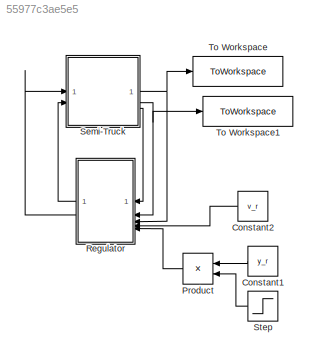
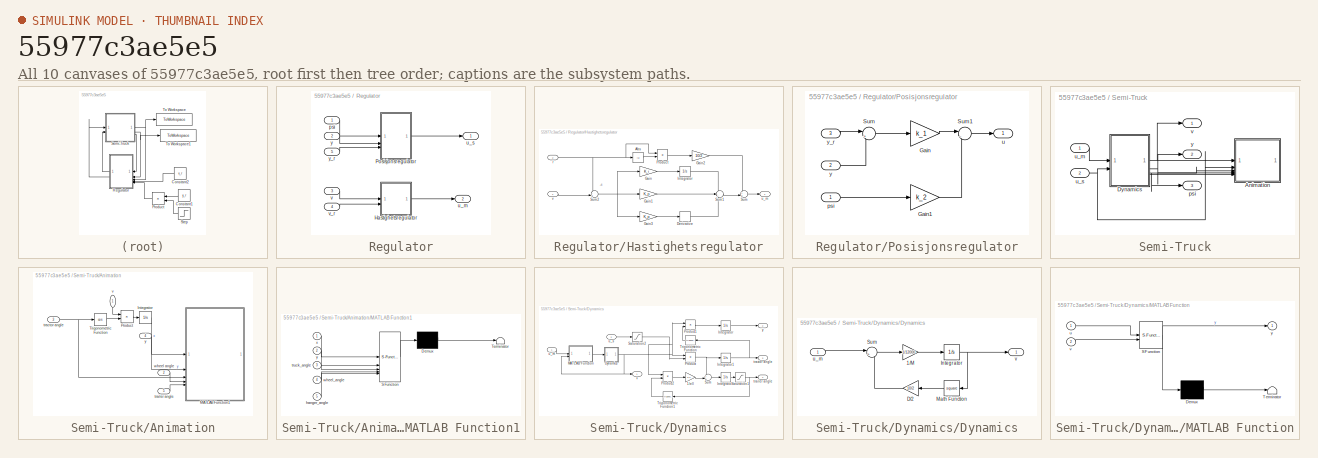
[diagram: thumbnail index - all 10 canvases of the model, root first then tree order]
MODEL slx_55977c3ae5e5
KIND model
CONFIG AbsTol = auto
CONFIG EnableMultiTasking = off
CONFIG FixedStep = auto
CONFIG MaxStep = 0.01
CONFIG MinStep = auto
CONFIG RelTol = 1e-3
CONFIG SampleTimeConstraint = Unconstrained
CONFIG SolverName = VariableStepAuto
CONFIG StartTime = 0.0
CONFIG StopTime = stopTime
WORKSPACE source: mxarray member
WORKSPACE v_r = -1
BLOCK [Constant] Constant1
  NameLocation = top
  Value = y_r
BLOCK [Constant] Constant2
  NameLocation = top
  Value = v_r
BLOCK [Product] Product
  NameLocation = top
BLOCK [SubSystem] Regulator
  NameLocation = top
BLOCK [SubSystem] Regulator/Hastighetsregulator
BLOCK [Abs] Regulator/Hastighetsregulator/Abs
  SaturateOnIntegerOverflow = off
BLOCK [Derivative] Regulator/Hastighetsregulator/Derivative
BLOCK [Gain] Regulator/Hastighetsregulator/Gain
  Gain = K_i
BLOCK [Gain] Regulator/Hastighetsregulator/Gain1
  Gain = K_p
BLOCK [Gain] Regulator/Hastighetsregulator/Gain2
  Gain = 10/2
BLOCK [Gain] Regulator/Hastighetsregulator/Gain3
  Gain = K_p
BLOCK [Integrator] Regulator/Hastighetsregulator/Integrator
BLOCK [Product] Regulator/Hastighetsregulator/Product
BLOCK [Sum] Regulator/Hastighetsregulator/Sum
  Inputs = ++|
BLOCK [Sum] Regulator/Hastighetsregulator/Sum1
  Inputs = --+
BLOCK [Sum] Regulator/Hastighetsregulator/Sum2
  Inputs = -+|
BLOCK [Inport] Regulator/Hastighetsregulator/r
  Port = 2
BLOCK [Outport] Regulator/Hastighetsregulator/u_m
BLOCK [Inport] Regulator/Hastighetsregulator/v
BLOCK [SubSystem] Regulator/Posisjonsregulator
BLOCK [Gain] Regulator/Posisjonsregulator/Gain
  Gain = k_1
BLOCK [Gain] Regulator/Posisjonsregulator/Gain1
  Gain = k_2
BLOCK [Sum] Regulator/Posisjonsregulator/Sum
  Inputs = |+-
BLOCK [Sum] Regulator/Posisjonsregulator/Sum1
  Inputs = |--
BLOCK [Inport] Regulator/Posisjonsregulator/psi
BLOCK [Outport] Regulator/Posisjonsregulator/u
BLOCK [Inport] Regulator/Posisjonsregulator/y
  Port = 2
BLOCK [Inport] Regulator/Posisjonsregulator/y_r
  Port = 3
BLOCK [Inport] Regulator/psi
BLOCK [Outport] Regulator/u_m
  Port = 2
BLOCK [Outport] Regulator/u_s
BLOCK [Inport] Regulator/v
  Port = 3
BLOCK [Inport] Regulator/v_r
  Port = 4
BLOCK [Inport] Regulator/y
  Port = 2
BLOCK [Inport] Regulator/y_r
  Port = 5
BLOCK [SubSystem] Semi-Truck
BLOCK [SubSystem] Semi-Truck/Animation
BLOCK [Integrator] Semi-Truck/Animation/Integrator
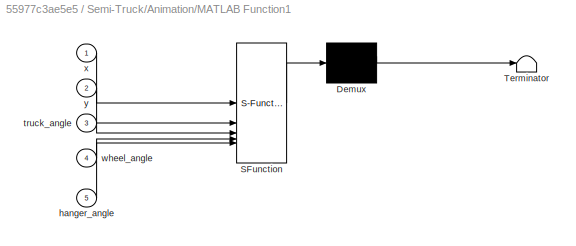
BLOCK [SubSystem] Semi-Truck/Animation/MATLAB Function1
  ErrorFcn = Stateflow.Translate.translate
  PermitHierarchicalResolution = ExplicitOnly
  SFBlockType = MATLAB Function
  SystemSampleTime = 1/30
  TreatAsAtomicUnit = on
BLOCK [Demux] Semi-Truck/Animation/MATLAB Function1/ Demux 
  Outputs = 1
BLOCK [S-Function] Semi-Truck/Animation/MATLAB Function1/ SFunction 
  EnableBusSupport = on
  FunctionName = sf_sfun
  PortCounts = [5 1]
  SFcnIsStateOwnerBlock = off
  SFunctionDeploymentMode = off
  Tag = Stateflow S-Function 3
BLOCK [Terminator] Semi-Truck/Animation/MATLAB Function1/ Terminator 
BLOCK [Inport] Semi-Truck/Animation/MATLAB Function1/hanger_angle
  Port = 5
BLOCK [Inport] Semi-Truck/Animation/MATLAB Function1/truck_angle
  Port = 3
BLOCK [Inport] Semi-Truck/Animation/MATLAB Function1/wheel_angle
  Port = 4
BLOCK [Inport] Semi-Truck/Animation/MATLAB Function1/x
BLOCK [Inport] Semi-Truck/Animation/MATLAB Function1/y
  Port = 2
BLOCK [Product] Semi-Truck/Animation/Product
BLOCK [Trigonometry] Semi-Truck/Animation/Trigonometric Function
  Operator = cos
BLOCK [Inport] Semi-Truck/Animation/tractor angle
  Port = 3
BLOCK [Inport] Semi-Truck/Animation/trailer angle
  Port = 5
BLOCK [Inport] Semi-Truck/Animation/v
  NameLocation = left
BLOCK [Inport] Semi-Truck/Animation/wheel angle
  Port = 2
BLOCK [Inport] Semi-Truck/Animation/y
  Port = 4
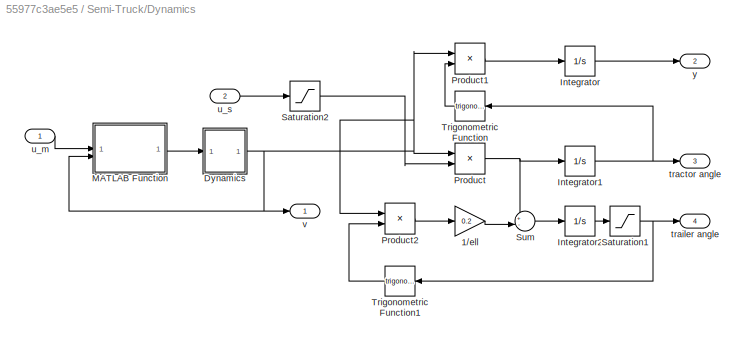
BLOCK [SubSystem] Semi-Truck/Dynamics
  ClipboardFcn = parameters_truck.m
BLOCK [Gain] Semi-Truck/Dynamics/1//ell
  Gain = 0.2
BLOCK [SubSystem] Semi-Truck/Dynamics/Dynamics
  ClipboardFcn = parameters_truck.m
BLOCK [Gain] Semi-Truck/Dynamics/Dynamics/1//M
  Gain = 1/12000
BLOCK [Gain] Semi-Truck/Dynamics/Dynamics/D//2
  Gain = 10/2
  NameLocation = top
BLOCK [Integrator] Semi-Truck/Dynamics/Dynamics/Integrator
BLOCK [Math] Semi-Truck/Dynamics/Dynamics/Math Function
  NameLocation = top
  Operator = square
BLOCK [Sum] Semi-Truck/Dynamics/Dynamics/Sum
  Inputs = |+-
BLOCK [Inport] Semi-Truck/Dynamics/Dynamics/u_m
BLOCK [Outport] Semi-Truck/Dynamics/Dynamics/v
BLOCK [Integrator] Semi-Truck/Dynamics/Integrator
  InitialCondition = -2
BLOCK [Integrator] Semi-Truck/Dynamics/Integrator1
BLOCK [Integrator] Semi-Truck/Dynamics/Integrator2
BLOCK [SubSystem] Semi-Truck/Dynamics/MATLAB Function
  ErrorFcn = Stateflow.Translate.translate
  PermitHierarchicalResolution = ExplicitOnly
  SFBlockType = MATLAB Function
  TreatAsAtomicUnit = on
BLOCK [Demux] Semi-Truck/Dynamics/MATLAB Function/ Demux 
  Outputs = 1
BLOCK [S-Function] Semi-Truck/Dynamics/MATLAB Function/ SFunction 
  EnableBusSupport = on
  FunctionName = sf_sfun
  PortCounts = [2 2]
  SFcnIsStateOwnerBlock = off
  SFunctionDeploymentMode = off
  Tag = Stateflow S-Function 1
BLOCK [Terminator] Semi-Truck/Dynamics/MATLAB Function/ Terminator 
BLOCK [Inport] Semi-Truck/Dynamics/MATLAB Function/u
BLOCK [Inport] Semi-Truck/Dynamics/MATLAB Function/v
  Port = 2
BLOCK [Outport] Semi-Truck/Dynamics/MATLAB Function/y
BLOCK [Product] Semi-Truck/Dynamics/Product
BLOCK [Product] Semi-Truck/Dynamics/Product1
BLOCK [Product] Semi-Truck/Dynamics/Product2
BLOCK [Saturate] Semi-Truck/Dynamics/Saturation1
  LowerLimit = -pi/2
  UpperLimit = pi/2
BLOCK [Saturate] Semi-Truck/Dynamics/Saturation2
  LowerLimit = -pi/2
  UpperLimit = pi/2
BLOCK [Sum] Semi-Truck/Dynamics/Sum
  Inputs = +-|
BLOCK [Trigonometry] Semi-Truck/Dynamics/Trigonometric Function
  NameLocation = top
BLOCK [Trigonometry] Semi-Truck/Dynamics/Trigonometric Function1
  NameLocation = top
BLOCK [Outport] Semi-Truck/Dynamics/tractor angle
  Port = 3
BLOCK [Outport] Semi-Truck/Dynamics/trailer angle
  Port = 4
BLOCK [Inport] Semi-Truck/Dynamics/u_m
BLOCK [Inport] Semi-Truck/Dynamics/u_s
  Port = 2
BLOCK [Outport] Semi-Truck/Dynamics/v
BLOCK [Outport] Semi-Truck/Dynamics/y
  Port = 2
BLOCK [Outport] Semi-Truck/psi
  Port = 3
BLOCK [Inport] Semi-Truck/u_m
BLOCK [Inport] Semi-Truck/u_s
  Port = 2
BLOCK [Outport] Semi-Truck/v
BLOCK [Outport] Semi-Truck/y
  Port = 2
BLOCK [Step] Step
  After = -1
  Before = 1
  NameLocation = top
  SampleTime = 0
  Time = 10
BLOCK [ToWorkspace] To Workspace
  FixptAsFi = on
  MaxDataPoints = inf
  SampleTime = 0.1
  Save2DSignal = 2-D array (concatenate along first dimension)
  VariableName = v
BLOCK [ToWorkspace] To Workspace1
  FixptAsFi = on
  MaxDataPoints = inf
  SampleTime = 0.1
  Save2DSignal = 2-D array (concatenate along first dimension)
  VariableName = y
ANNOTATION Regulator/Hastighetsregulator: -e
LINE Constant1:1 -> Product:1
LINE Constant2:1 -> Regulator:4
LINE Product:1 -> Regulator:5
LINE Regulator/Hastighetsregulator/Abs:1 -> Regulator/Hastighetsregulator/Product:2
LINE Regulator/Hastighetsregulator/Derivative:1 -> Regulator/Hastighetsregulator/Sum1:3
LINE Regulator/Hastighetsregulator/Gain1:1 -> Regulator/Hastighetsregulator/Sum1:2
LINE Regulator/Hastighetsregulator/Gain2:1 -> Regulator/Hastighetsregulator/Sum:1
LINE Regulator/Hastighetsregulator/Gain3:1 -> Regulator/Hastighetsregulator/Derivative:1
LINE Regulator/Hastighetsregulator/Gain:1 -> Regulator/Hastighetsregulator/Integrator:1
LINE Regulator/Hastighetsregulator/Integrator:1 -> Regulator/Hastighetsregulator/Sum1:1
LINE Regulator/Hastighetsregulator/Product:1 -> Regulator/Hastighetsregulator/Gain2:1
LINE Regulator/Hastighetsregulator/Sum1:1 -> Regulator/Hastighetsregulator/Sum:2
NET Regulator/Hastighetsregulator/Sum2:1 -> Regulator/Hastighetsregulator/Gain1:1, Regulator/Hastighetsregulator/Gain3:1, Regulator/Hastighetsregulator/Gain:1
LINE Regulator/Hastighetsregulator/Sum:1 -> Regulator/Hastighetsregulator/u_m:1
NET Regulator/Hastighetsregulator/r:1 -> Regulator/Hastighetsregulator/Abs:1, Regulator/Hastighetsregulator/Product:1, Regulator/Hastighetsregulator/Sum2:1
LINE Regulator/Hastighetsregulator/v:1 -> Regulator/Hastighetsregulator/Sum2:2
LINE Regulator/Hastighetsregulator:1 -> Regulator/u_m:1
LINE Regulator/Posisjonsregulator/Gain1:1 -> Regulator/Posisjonsregulator/Sum1:2
LINE Regulator/Posisjonsregulator/Gain:1 -> Regulator/Posisjonsregulator/Sum1:1
LINE Regulator/Posisjonsregulator/Sum1:1 -> Regulator/Posisjonsregulator/u:1
LINE Regulator/Posisjonsregulator/Sum:1 -> Regulator/Posisjonsregulator/Gain:1
LINE Regulator/Posisjonsregulator/psi:1 -> Regulator/Posisjonsregulator/Gain1:1
LINE Regulator/Posisjonsregulator/y:1 -> Regulator/Posisjonsregulator/Sum:2
LINE Regulator/Posisjonsregulator/y_r:1 -> Regulator/Posisjonsregulator/Sum:1
LINE Regulator/Posisjonsregulator:1 -> Regulator/u_s:1
LINE Regulator/psi:1 -> Regulator/Posisjonsregulator:1
LINE Regulator/v:1 -> Regulator/Hastighetsregulator:1
LINE Regulator/v_r:1 -> Regulator/Hastighetsregulator:2
LINE Regulator/y:1 -> Regulator/Posisjonsregulator:2
LINE Regulator/y_r:1 -> Regulator/Posisjonsregulator:3
LINE Regulator:1 -> Semi-Truck:2
LINE Regulator:2 -> Semi-Truck:1
LINE Semi-Truck/Animation/Integrator:1 -> Semi-Truck/Animation/MATLAB Function1:1
LINE Semi-Truck/Animation/Product:1 -> Semi-Truck/Animation/Integrator:1
LINE Semi-Truck/Animation/Trigonometric Function:1 -> Semi-Truck/Animation/Product:2
NET Semi-Truck/Animation/tractor angle:1 -> Semi-Truck/Animation/MATLAB Function1:3, Semi-Truck/Animation/Trigonometric Function:1
LINE Semi-Truck/Animation/trailer angle:1 -> Semi-Truck/Animation/MATLAB Function1:5
LINE Semi-Truck/Animation/v:1 -> Semi-Truck/Animation/Product:1
LINE Semi-Truck/Animation/wheel angle:1 -> Semi-Truck/Animation/MATLAB Function1:4
LINE Semi-Truck/Animation/y:1 -> Semi-Truck/Animation/MATLAB Function1:2
LINE Semi-Truck/Dynamics/1//ell:1 -> Semi-Truck/Dynamics/Sum:2
LINE Semi-Truck/Dynamics/Dynamics/1//M:1 -> Semi-Truck/Dynamics/Dynamics/Integrator:1
LINE Semi-Truck/Dynamics/Dynamics/D//2:1 -> Semi-Truck/Dynamics/Dynamics/Sum:2
NET Semi-Truck/Dynamics/Dynamics/Integrator:1 -> Semi-Truck/Dynamics/Dynamics/Math Function:1, Semi-Truck/Dynamics/Dynamics/v:1
LINE Semi-Truck/Dynamics/Dynamics/Math Function:1 -> Semi-Truck/Dynamics/Dynamics/D//2:1
LINE Semi-Truck/Dynamics/Dynamics/Sum:1 -> Semi-Truck/Dynamics/Dynamics/1//M:1
LINE Semi-Truck/Dynamics/Dynamics/u_m:1 -> Semi-Truck/Dynamics/Dynamics/Sum:1
NET Semi-Truck/Dynamics/Dynamics:1 -> Semi-Truck/Dynamics/MATLAB Function:2, Semi-Truck/Dynamics/Product1:1, Semi-Truck/Dynamics/Product2:1, Semi-Truck/Dynamics/Product:1, Semi-Truck/Dynamics/v:1
NET Semi-Truck/Dynamics/Integrator1:1 -> Semi-Truck/Dynamics/Trigonometric Function:1, Semi-Truck/Dynamics/tractor angle:1
LINE Semi-Truck/Dynamics/Integrator2:1 -> Semi-Truck/Dynamics/Saturation1:1
LINE Semi-Truck/Dynamics/Integrator:1 -> Semi-Truck/Dynamics/y:1
LINE Semi-Truck/Dynamics/MATLAB Function:1 -> Semi-Truck/Dynamics/Dynamics:1
LINE Semi-Truck/Dynamics/Product1:1 -> Semi-Truck/Dynamics/Integrator:1
LINE Semi-Truck/Dynamics/Product2:1 -> Semi-Truck/Dynamics/1//ell:1
NET Semi-Truck/Dynamics/Product:1 -> Semi-Truck/Dynamics/Integrator1:1, Semi-Truck/Dynamics/Sum:1
NET Semi-Truck/Dynamics/Saturation1:1 -> Semi-Truck/Dynamics/Trigonometric Function1:1, Semi-Truck/Dynamics/trailer angle:1
LINE Semi-Truck/Dynamics/Saturation2:1 -> Semi-Truck/Dynamics/Product:2
LINE Semi-Truck/Dynamics/Sum:1 -> Semi-Truck/Dynamics/Integrator2:1
LINE Semi-Truck/Dynamics/Trigonometric Function1:1 -> Semi-Truck/Dynamics/Product2:2
LINE Semi-Truck/Dynamics/Trigonometric Function:1 -> Semi-Truck/Dynamics/Product1:2
LINE Semi-Truck/Dynamics/u_m:1 -> Semi-Truck/Dynamics/MATLAB Function:1
LINE Semi-Truck/Dynamics/u_s:1 -> Semi-Truck/Dynamics/Saturation2:1
NET Semi-Truck/Dynamics:1 -> Semi-Truck/Animation:1, Semi-Truck/v:1
NET Semi-Truck/Dynamics:2 -> Semi-Truck/Animation:4, Semi-Truck/y:1
NET Semi-Truck/Dynamics:3 -> Semi-Truck/Animation:3, Semi-Truck/psi:1
LINE Semi-Truck/Dynamics:4 -> Semi-Truck/Animation:5
LINE Semi-Truck/u_m:1 -> Semi-Truck/Dynamics:1
NET Semi-Truck/u_s:1 -> Semi-Truck/Animation:2, Semi-Truck/Dynamics:2
NET Semi-Truck:1 -> Regulator:3, To Workspace:1
NET Semi-Truck:2 -> Regulator:2, To Workspace1:1
LINE Semi-Truck:3 -> Regulator:1
LINE Step:1 -> Product:2
note: NET lines group one-source signal fan-out (src -> all destinations, sorted); 1:1 wires keep LINE
CHART Semi-Truck/Dynamics/MATLAB Function states=1 transitions=1
  STATE_LABEL 'eML_blk_kernel()'
  STATE_LABEL 'SCRIPT:\nfunction y = saturation(u,v)\n    Pmax = 400000;\n    epsilon = 0.1;\n    \n    sat = Pmax/sqrt(v^2+epsilon);\n    y = max(min(u,sat),-sat);\n'
CHART Semi-Truck/Animation/MATLAB Function1 states=1 transitions=1
  STATE_LABEL 'eML_blk_kernel()'
  STATE_LABEL 'SCRIPT:\nfunction plot_truck(x,y,truck_angle,wheel_angle,hanger_angle)\n    % Parameters\n    l = 8;\n    persistent Truck;\n\n    % Plotting Truck\n    if isempty(Truck)\n        Truck = initialize_plot();\n    else\n        update_truck_position(Truck,x,y,truck_angle,wheel_angle,hanger_angle);\n    end    \n\n    drawnow;\n\n    % Functions\n    function Truck = initialize_plot()\n        % Create figure\n       ...<+3140ch>'
CHART  states=0 transitions=0
CHART  states=0 transitions=0
